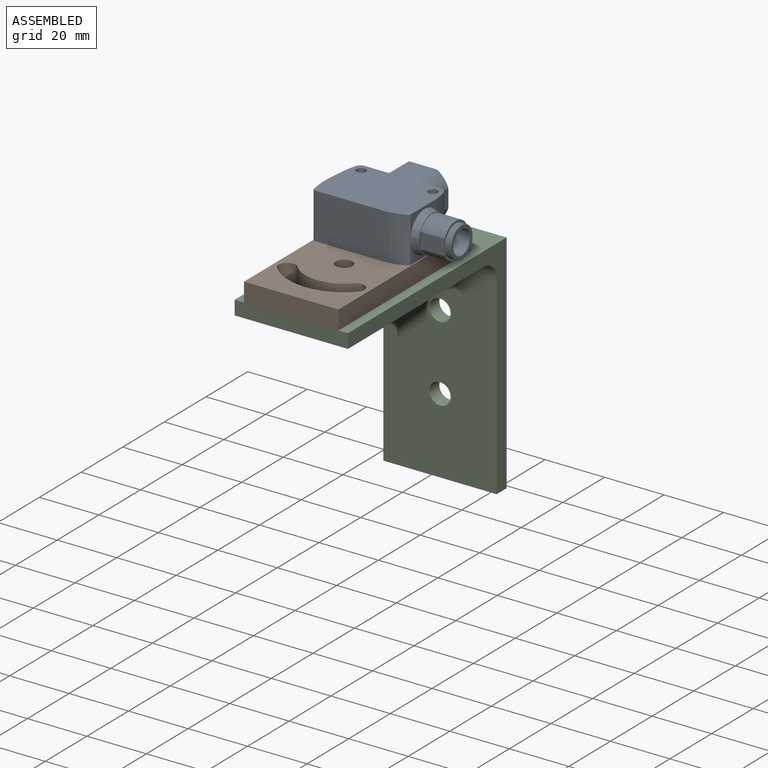
[diagram: assembled view]
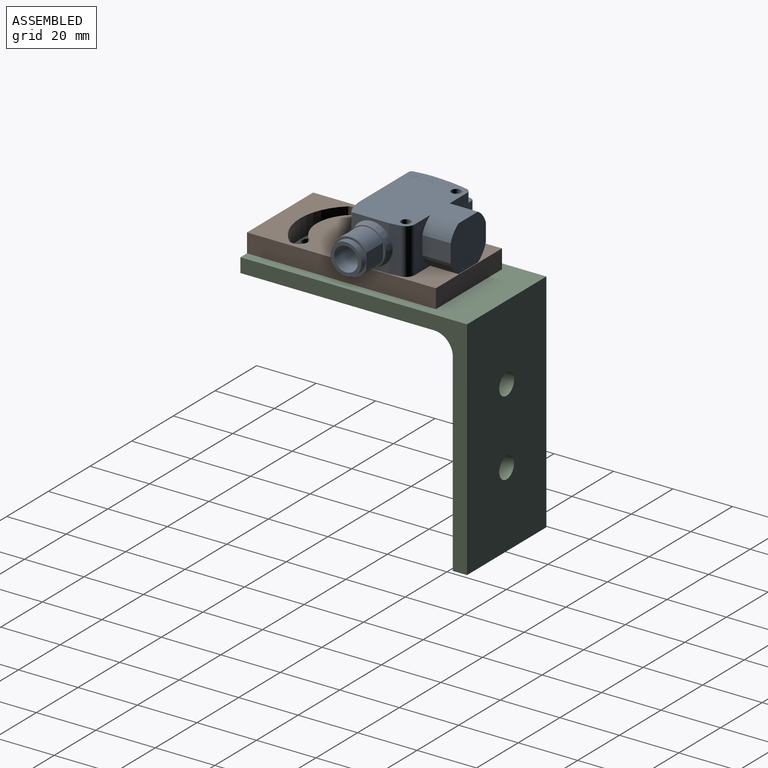
[diagram: assembled view, second angle]
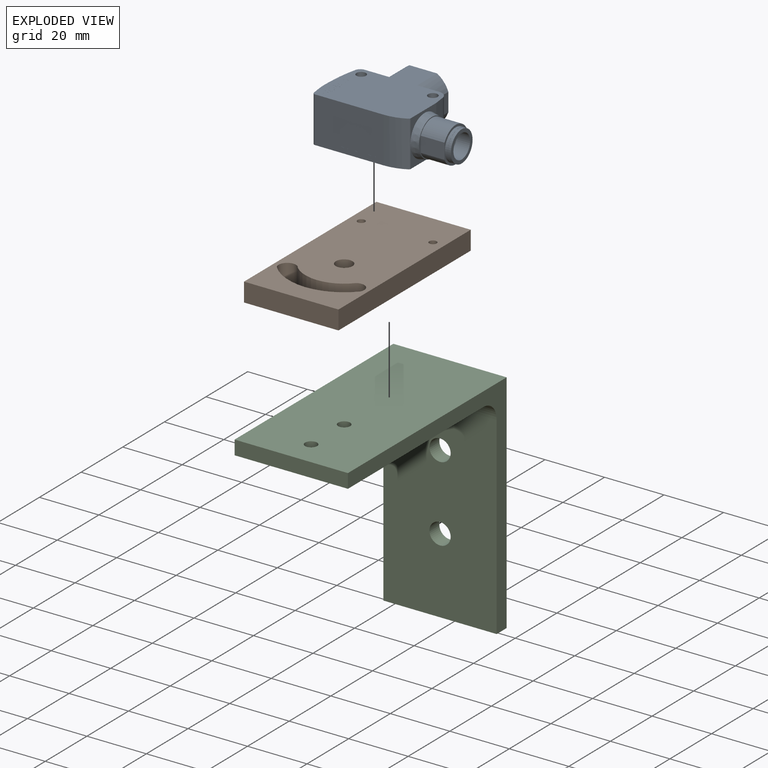
[diagram: exploded view]
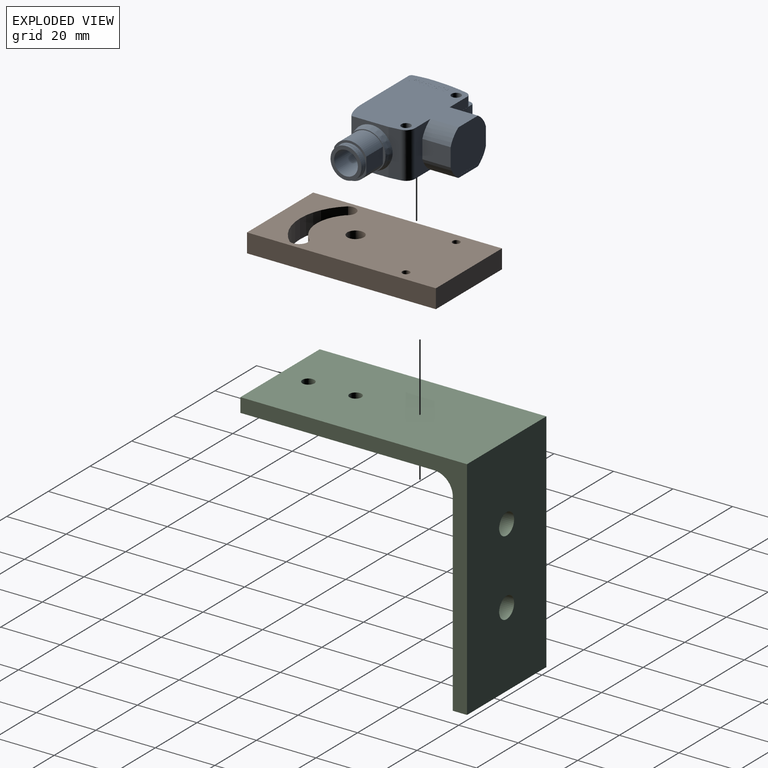
[diagram: exploded view, second angle]
ASSEMBLY  parts=3 mates=2
PART A: 268 faces, bbox 15.6x46.9x30.7 mm
  f0: plane 8.12x8.12mm, normal (0,-1,0), area 50.3mm2, adj f1
  f1: cylinder r=4mm len=10mm, axis (0,-1,0), area 251.3mm2, adj f0,f2
  f2: plane 10.55x10.55mm, normal (0,-1,0), area 34.7mm2, adj f1,f3
  f3: cylinder r=5.2mm len=10.4mm, axis (0,1,0), area 32.7mm2, adj f2,f4
  f4: plane 10.65x10.65mm, normal (0,-1,0), area 1.6mm2, adj f3,f5
  f5: cylinder r=5.25mm len=10.5mm, axis (0,1,0), area 33mm2, adj f4,f17
  f6: plane 0.4x0.4mm, normal (0.71,0,0.71), area 0.1mm2, adj f7,f22,f23,f24
  f7: plane 0.63x0.11mm, normal (0,0,1), area 0.1mm2, adj f6,f8,f22,f24
  f8: plane 0.75x0.13mm, normal (1,0,0), area 0.1mm2, adj f7,f9,f22,f24
  f9: plane 0.63x0.13mm, normal (0,0,-1), area 0.1mm2, adj f8,f10,f22,f24
  f10: plane 0.4x0.4mm, normal (0.71,0,-0.71), area 0.1mm2, adj f9,f21,f22,f24
  f11: plane 0.4x0.4mm, normal (-0.71,0,-0.71), area 0.1mm2, adj f12,f19,f20,f24
  f12: plane 0.63x0.13mm, normal (0,0,-1), area 0.1mm2, adj f11,f13,f19,f24
  f13: plane 0.75x0.13mm, normal (-1,0,0), area 0.1mm2, adj f12,f14,f19,f24
  f14: plane 0.63x0.11mm, normal (0,0,1), area 0.1mm2, adj f13,f15,f19,f24
  f15: plane 0.4x0.4mm, normal (-0.71,0,0.71), area 0.1mm2, adj f14,f18,f19,f24
  f16: plane 29.78x18.96mm, normal (1,0,0), area 513.2mm2, adj f26,f27,f28,f29,f30,f31,f32,f33
  f17: plane 12.15x10.95mm, normal (0,-1,0), area 22.3mm2, adj f5,f43,f44,f45,f46
  f18: plane 1.24x0.1mm, normal (-1,0,0), area 0.1mm2, adj f15,f19,f24,f49
  f19: plane 4.07x1.71mm, normal (0,1,0), area 4.1mm2, adj f11,f12,f13,f14,f15,f18,f20,f49
  f20: plane 1.24x0.23mm, normal (-1,0,0), area 0.2mm2, adj f11,f19,f24,f49
  f21: plane 1.24x0.23mm, normal (1,0,0), area 0.2mm2, adj f10,f22,f24,f49
  f22: plane 4.07x1.71mm, normal (0,1,0), area 4.1mm2, adj f6,f7,f8,f9,f10,f21,f23,f49
  f23: plane 1.24x0.1mm, normal (1,0,0), area 0.1mm2, adj f6,f22,f24,f49
  f24: cylinder r=51.85mm len=4.1mm, axis (-1,0,0), area 4.9mm2, adj f6,f7,f8,f9,f10,f11,f12,f13
  f25: cylinder r=50.33mm len=5.36mm, axis (-1,0,0), area 3mm2, adj f48,f50,f51,f53,f73,f77,f79,f140
  f26: plane 22.43x0.01mm, normal (0,0,-1), area 0.2mm2, adj f16,f27,f42,f56
  f27: cylinder r=13.7mm len=6.35mm, axis (1,0,0), area 0.1mm2, adj f16,f26,f28,f56
  f28: cylinder r=0.35mm len=0.31mm, axis (1,0,0), area 0mm2, adj f16,f27,f29,f56
  f29: plane 12.18x0.01mm, normal (0,-1,0), area 0.1mm2, adj f16,f28,f30,f56
  f30: cylinder r=0.35mm len=0.35mm, axis (1,0,0), area 0mm2, adj f16,f29,f31,f56
  f31: plane 2.15x0.01mm, normal (0,0,1), area 0mm2, adj f16,f30,f32,f56
  f32: cylinder r=2.3mm len=2.3mm, axis (1,0,0), area 0mm2, adj f16,f31,f33,f56
  f33: plane 1.9x0.01mm, normal (0,-1,0), area 0mm2, adj f16,f32,f34,f56
  f34: cylinder r=0.35mm len=0.35mm, axis (1,0,0), area 0mm2, adj f16,f33,f35,f56
  f35: plane 18.8x0.01mm, normal (0,0,1), area 0.2mm2, adj f16,f34,f36,f56
  f36: cylinder r=0.35mm len=0.35mm, axis (1,0,0), area 0mm2, adj f16,f35,f37,f56
  f37: plane 1.9x0.01mm, normal (0,1,0), area 0mm2, adj f16,f36,f38,f56
  f38: cylinder r=2.3mm len=2.3mm, axis (1,0,0), area 0mm2, adj f16,f37,f39,f56
  f39: plane 2.27x0.01mm, normal (0,0,1), area 0mm2, adj f16,f38,f40,f56
  f40: cylinder r=0.35mm len=0.35mm, axis (1,0,0), area 0mm2, adj f16,f39,f41,f56
  f41: cylinder r=49.2mm len=13.8mm, axis (1,0,0), area 0.1mm2, adj f16,f40,f42,f56
  f42: cylinder r=0.35mm len=0.35mm, axis (1,0,0), area 0mm2, adj f16,f26,f41,f56
  f43: cylinder r=6mm len=10.8mm, axis (0,1,0), area 107.5mm2, adj f17,f44,f46,f58
  f44: plane 8x5.23mm, normal (0,0,-1), area 41.8mm2, adj f17,f43,f45,f58
  f45: cylinder r=6mm len=10.8mm, axis (0,1,0), area 107.5mm2, adj f17,f44,f46,f58
  f46: plane 8x5.23mm, normal (0,0,1), area 41.8mm2, adj f17,f43,f45,f58
  f47: plane 1.43x1.42mm, normal (0,1,0), area 0.7mm2, adj f61,f62,f63,f64,f65,f66,f67,f68
  f48: cylinder r=51.85mm len=0.78mm, axis (-1,0,0), area 0.1mm2, adj f25,f50,f77
  f49: cylinder r=2.05mm len=4.1mm, axis (0,1,0), area 4.3mm2, adj f18,f19,f20,f21,f22,f23,f24,f78
  f50: cylinder r=2.3mm len=2.37mm, axis (0,1,0), area 0.3mm2, adj f25,f48,f51,f77,f78,f79
  f51: cylinder r=51.85mm len=0.78mm, axis (-1,0,0), area 0.1mm2, adj f25,f50,f79
  f52: cylinder r=10.73mm len=8.8mm, axis (-1,0,0), area 22.9mm2, adj f55,f81,f85,f86,f150,f151
  f53: plane 3.86x0.2mm, normal (0,0,-1), area 0.8mm2, adj f25,f73,f84,f146
  f54: plane 1.53x0.58mm, normal (0,1,0), area 0.5mm2, adj f55,f73,f74,f75,f84
  f55: revolved ~11x4.01mm, area 19.4mm2, adj f52,f54,f75,f81,f82,f83,f84,f86
  f56: plane 29.98x19.16mm, normal (1,0,0), area 9.3mm2, adj f26,f27,f28,f29,f30,f31,f32,f33
  f57: plane 16.1x13.8mm, normal (0,0,1), area 190.7mm2, adj f117,f118,f119,f120
  f58: plane 12.78x12.78mm, normal (0,-1,0), area 15.8mm2, adj f43,f44,f45,f46,f124
  f59: plane 14.91x9.36mm, normal (0,0,-1), area 139mm2, adj f126,f127,f128,f129,f130,f131,f132,f133
  f60: plane 5.12x1.8mm, normal (0,1,0), area 3.2mm2, adj f134,f135,f136,f137,f138,f139
  f61: plane 0.58x0.26mm, normal (-1,0,0), area 0.1mm2, adj f47,f62,f72,f140
  f62: plane 0.27x0.25mm, normal (0,0,-1), area 0.1mm2, adj f47,f61,f63,f140
  f63: plane 0.58x0.26mm, normal (1,0,0), area 0.1mm2, adj f47,f62,f64,f140
  f64: plane 0.58x0.26mm, normal (0,0,-1), area 0.1mm2, adj f47,f63,f65,f140
  f65: plane 0.27x0.26mm, normal (1,0,0), area 0.1mm2, adj f47,f64,f66,f140
  f66: plane 0.58x0.26mm, normal (0,0,1), area 0.1mm2, adj f47,f65,f67,f140
  f67: plane 0.58x0.26mm, normal (1,0,0), area 0.2mm2, adj f47,f66,f68,f140
  f68: plane 0.27x0.26mm, normal (0,0,1), area 0.1mm2, adj f47,f67,f69,f140
  f69: plane 0.58x0.26mm, normal (-1,0,0), area 0.2mm2, adj f47,f68,f70,f140
  f70: plane 0.58x0.26mm, normal (0,0,1), area 0.1mm2, adj f47,f69,f71,f140
  f71: plane 0.27x0.26mm, normal (-1,0,0), area 0.1mm2, adj f47,f70,f72,f140
  f72: plane 0.58x0.26mm, normal (0,0,-1), area 0.1mm2, adj f47,f61,f71,f140
  f73: extruded ~1.13x1.06mm, area 0.1mm2, adj f25,f53,f54,f74,f84,f140
  f74: cylinder r=0.2mm len=0.27mm, axis (0,-1,0), area 0mm2, adj f54,f73,f75,f140
  f75: plane 0.94x0.51mm, normal (0.47,0,-0.88), area 0mm2, adj f54,f55,f74,f140
  f76: plane 1.05x0.32mm, normal (0,1,0), area 0.3mm2, adj f142,f143,f144,f145
  f77: plane 0.41x0.3mm, normal (0.81,0,-0.59), area 0.1mm2, adj f25,f48,f50,f78,f147
  f78: plane 5.68x5.23mm, normal (0,1,0), area 10mm2, adj f49,f50,f77,f79,f147
  f79: plane 0.41x0.3mm, normal (-0.81,0,-0.59), area 0.1mm2, adj f25,f50,f51,f78,f147
  f80: plane 1.5x0.47mm, normal (0,1,0), area 0.3mm2, adj f84,f146,f148
  f81: cylinder r=2.5mm len=8.28mm, axis (-1,0,0), area 20.9mm2, adj f52,f55,f82,f151
  f82: cylinder r=52.7mm len=7.65mm, axis (-1,0,0), area 38.9mm2, adj f55,f81,f83,f151
  f83: plane 8.4x1.72mm, normal (0,0.79,-0.62), area 17.5mm2, adj f55,f82,f84,f151
  f84: cylinder r=3.02mm len=8.76mm, axis (-1,0,0), area 12.8mm2, adj f53,f54,f55,f73,f80,f83,f146,f148
  f85: cylinder r=2.13mm len=8.8mm, axis (-1,0,0), area 3.6mm2, adj f52,f86,f150,f152
  f86: plane 10.62x7.24mm, normal (1,0,0), area 16mm2, adj f52,f55,f85,f87,f88,f89,f152,f153
  f87: plane 4.78x0.01mm, normal (0,0,1), area 0mm2, adj f86,f88,f153,f154
  f88: cylinder r=50.33mm len=9.59mm, axis (-1,0,0), area 0.1mm2, adj f86,f87,f89,f154
  f89: plane 1.13x0.01mm, normal (0,0,1), area 0mm2, adj f86,f88,f140,f154
  f90: cylinder r=50.33mm len=9.38mm, axis (1,0,0), area 0.1mm2, adj f91,f149,f150,f157
  f91: plane 4.78x0.01mm, normal (0,0,1), area 0mm2, adj f90,f150,f157,f158
  f92: cylinder r=0.45mm len=0.45mm, axis (1,0,0), area 0mm2, adj f56,f93,f108,f160
  f93: plane 22.43x0.01mm, normal (0,0,1), area 0.2mm2, adj f56,f92,f94,f160
  f94: cylinder r=13.8mm len=6.39mm, axis (1,0,0), area 0.1mm2, adj f56,f93,f95,f160
  f95: cylinder r=0.45mm len=0.4mm, axis (1,0,0), area 0mm2, adj f56,f94,f96,f160
  f96: plane 12.18x0.01mm, normal (0,1,0), area 0.1mm2, adj f56,f95,f97,f160
  f97: cylinder r=0.45mm len=0.45mm, axis (1,0,0), area 0mm2, adj f56,f96,f98,f160
  f98: plane 2.15x0.01mm, normal (0,0,-1), area 0mm2, adj f56,f97,f99,f160
  f99: cylinder r=2.2mm len=2.2mm, axis (1,0,0), area 0mm2, adj f56,f98,f100,f160
  f100: plane 1.9x0.01mm, normal (0,1,0), area 0mm2, adj f56,f99,f101,f160
  f101: cylinder r=0.45mm len=0.45mm, axis (1,0,0), area 0mm2, adj f56,f100,f102,f160
  f102: plane 18.8x0.01mm, normal (0,0,-1), area 0.2mm2, adj f56,f101,f103,f160
  f103: cylinder r=0.45mm len=0.45mm, axis (1,0,0), area 0mm2, adj f56,f102,f104,f160
  f104: plane 1.9x0.01mm, normal (0,-1,0), area 0mm2, adj f56,f103,f105,f160
  f105: cylinder r=2.2mm len=2.2mm, axis (1,0,0), area 0mm2, adj f56,f104,f106,f160
  f106: plane 2.27x0.01mm, normal (0,0,-1), area 0mm2, adj f56,f105,f107,f160
  f107: cylinder r=0.45mm len=0.45mm, axis (1,0,0), area 0mm2, adj f56,f106,f108,f160
  f108: cylinder r=49.3mm len=13.83mm, axis (1,0,0), area 0.1mm2, adj f56,f92,f107,f160
  f109: cylinder r=50.33mm len=9.06mm, axis (-1,0,0), area 30.2mm2, adj f140,f154,f155,f160
  f110: plane 1.97x1.58mm, normal (-1,0,0), area 2mm2, adj f162,f163,f164,f165,f166,f167,f168,f169
  f111: plane 1.97x1.66mm, normal (-1,0,0), area 1mm2, adj f172,f173,f174,f175,f176,f177,f178,f179
  f112: plane 1.97x1.17mm, normal (-1,0,0), area 0.9mm2, adj f181,f182,f183,f184,f185,f186
  f113: plane 1.99x1.45mm, normal (-1,0,0), area 1.8mm2, adj f187,f188,f189,f190,f191,f192,f193,f194
  f114: plane 1.97x1.43mm, normal (-1,0,0), area 1.8mm2, adj f203,f204,f205,f206,f207,f208,f209,f210
  f115: plane 1.97x1.43mm, normal (-1,0,0), area 1.8mm2, adj f219,f220,f221,f222,f223,f224,f225,f226
  f116: plane 1.97x1.41mm, normal (-1,0,0), area 1.4mm2, adj f235,f236,f237,f238,f239,f240,f241,f242
  f117: cylinder r=8.05mm len=13.8mm, axis (0,0,1), area 0.2mm2, adj f57,f118,f120,f247
  f118: plane 8.29x0.01mm, normal (-1,0,0), area 0.1mm2, adj f57,f117,f119,f247
  f119: cylinder r=8.05mm len=13.8mm, axis (0,0,1), area 0.2mm2, adj f57,f118,f120,f247
  f120: plane 8.29x0.01mm, normal (1,0,0), area 0.1mm2, adj f57,f117,f119,f247
  f121: plane 9.5x6.2mm, normal (0,-1,0), area 58.9mm2, adj f122,f247,f248,f249
  f122: cylinder r=9mm len=9.5mm, axis (0,0,1), area 57.7mm2, adj f121,f160,f247,f249
  f123: plane 12.5x7.8mm, normal (0,-1,0), area 26mm2, adj f124,f125,f160,f251
  f124: cone r=6.83mm half-angle=11.3deg, axis (0,1,0), area 105.6mm2, adj f58,f123,f251,f252
  f125: cylinder r=1.25mm len=15.4mm, axis (-1,0,0), area 11.4mm2, adj f123,f160,f252,f253,f267
  f126: extruded ~0.66x0.54mm, area 0mm2, adj f59,f127,f133,f254
  f127: plane 8.28x0.01mm, normal (0,-1,0), area 0.1mm2, adj f59,f126,f128,f254
  f128: extruded ~1.09x0.53mm, area 0mm2, adj f59,f127,f129,f254
  f129: plane 12.72x0.01mm, normal (-1,0,0), area 0.1mm2, adj f59,f128,f130,f254
  f130: extruded ~1.09x0.53mm, area 0mm2, adj f59,f129,f131,f254
  f131: plane 8.28x0.01mm, normal (0,1,0), area 0.1mm2, adj f59,f130,f132,f254
  f132: extruded ~0.66x0.54mm, area 0mm2, adj f59,f131,f133,f254
  f133: plane 13.59x0.01mm, normal (1,0,0), area 0.1mm2, adj f59,f126,f132,f254
  f134: extruded ~2.73x1.75mm, area 0.3mm2, adj f60,f135,f139,f255
  f135: extruded ~2.38x1.17mm, area 0.2mm2, adj f60,f134,f136,f255
  f136: plane 0.66x0.62mm, normal (-0.69,0,-0.73), area 0.2mm2, adj f60,f135,f137,f255
  f137: extruded ~2.11x1.15mm, area 0.3mm2, adj f60,f136,f138,f255
  f138: extruded ~2.29x1.12mm, area 0.3mm2, adj f60,f137,f139,f255
  f139: extruded ~0.19x0.05mm, area 0mm2, adj f60,f134,f138,f255
  f140: cylinder r=51.85mm len=7.25mm, axis (-1,0,0), area 24.8mm2, adj f25,f61,f62,f63,f64,f65,f66,f67
  f141: cylinder r=1mm len=15.4mm, axis (-1,0,0), area 21.9mm2, adj f160,f254,f255,f267
  f142: plane 0.32x0.26mm, normal (1,0,0), area 0.1mm2, adj f76,f143,f145,f256
  f143: plane 1.05x0.26mm, normal (0,0,1), area 0.3mm2, adj f76,f142,f144,f256
  f144: plane 0.32x0.26mm, normal (-1,0,0), area 0.1mm2, adj f76,f143,f145,f256
  f145: plane 1.05x0.26mm, normal (0,0,-1), area 0.3mm2, adj f76,f142,f144,f256
  f146: extruded ~1.12x1.06mm, area 0.2mm2, adj f25,f53,f80,f84,f148,f256
  f147: cylinder r=2.8mm len=5.6mm, axis (0,1,0), area 3.2mm2, adj f25,f77,f78,f79,f140,f255,f256
  f148: plane 1.61x0.64mm, normal (-0.37,0,-0.93), area 0.1mm2, adj f80,f84,f146,f151,f256,f257
  f149: plane 1.13x0.01mm, normal (0,0,1), area 0mm2, adj f90,f150,f157,f257
  f150: plane 10.41x7.23mm, normal (-1,0,0), area 15.8mm2, adj f52,f85,f90,f91,f149,f151,f152,f158
  f151: revolved ~10.78x4mm, area 19.4mm2, adj f52,f81,f82,f83,f84,f148,f150
  f152: plane 8.8x3.68mm, normal (0,0,1), area 26.3mm2, adj f85,f86,f150,f259
  f153: plane 1.01x0.01mm, normal (0,1,0), area 0mm2, adj f86,f87,f154,f259
  f154: plane 10.65x7.27mm, normal (-1,0,0), area 15.5mm2, adj f87,f88,f89,f109,f140,f153,f155,f259
  f155: cylinder r=2.13mm len=3.29mm, axis (-1,0,0), area 9.9mm2, adj f109,f154,f160,f259
  f156: cylinder r=9mm len=9.5mm, axis (0,0,1), area 57.7mm2, adj f159,f160,f247,f259
  f157: plane 10.43x7.26mm, normal (1,0,0), area 15.3mm2, adj f90,f91,f149,f158,f257,f258,f259
  f158: plane 1.01x0.01mm, normal (0,1,0), area 0mm2, adj f91,f150,f157,f259
  f159: plane 9.5x6.2mm, normal (0,1,0), area 58.9mm2, adj f156,f247,f259,f260
  f160: plane 32.1x30.57mm, normal (1,0,0), area 202.2mm2, adj f92,f93,f94,f95,f96,f97,f98,f99
  f161: plane 2.05x1.42mm, normal (-1,0,0), area 1.4mm2, adj f263,f264,f265,f266
  f162: plane 1.18x0.01mm, normal (0,0,-1), area 0mm2, adj f110,f163,f171,f267
  f163: cylinder r=981.37mm len=1.18mm, axis (-1,0,0), area 0mm2, adj f110,f162,f164,f267
  f164: plane 0.36x0.01mm, normal (0,1,0), area 0mm2, adj f110,f163,f165,f267
  f165: plane 1.97x0.01mm, normal (0,0,-1), area 0mm2, adj f110,f164,f166,f267
  f166: plane 0.37x0.01mm, normal (0,-1,0), area 0mm2, adj f110,f165,f167,f267
  f167: plane 1.33x0.01mm, normal (0,0,1), area 0mm2, adj f110,f166,f168,f267
  f168: cylinder r=1044.69mm len=1.33mm, axis (1,0,0), area 0mm2, adj f110,f167,f169,f267
  f169: plane 0.34x0.01mm, normal (0,-1,0), area 0mm2, adj f110,f168,f170,f267
  f170: plane 1.97x0.01mm, normal (0,0,1), area 0mm2, adj f110,f169,f171,f267
  f171: plane 0.37x0.01mm, normal (0,1,0), area 0mm2, adj f110,f162,f170,f267
  f172: plane 0.96x0.01mm, normal (0,0,-1), area 0mm2, adj f111,f173,f180,f267
  f173: plane 0.37x0.01mm, normal (0,-1,0), area 0mm2, adj f111,f172,f174,f267
  f174: plane 0.96x0.01mm, normal (0,0,1), area 0mm2, adj f111,f173,f175,f267
  f175: cylinder r=984.53mm len=1.01mm, axis (1,0,0), area 0mm2, adj f111,f174,f176,f267
  f176: plane 0.32x0.01mm, normal (0,1,0), area 0mm2, adj f111,f175,f177,f267
  f177: cylinder r=973.84mm len=0.78mm, axis (-1,0,0), area 0mm2, adj f111,f176,f178,f267
  f178: cylinder r=974.13mm len=0.78mm, axis (-1,0,0), area 0mm2, adj f111,f177,f179,f267
  f179: plane 0.32x0.01mm, normal (0,1,0), area 0mm2, adj f111,f178,f180,f267
  f180: cylinder r=984.58mm len=1.01mm, axis (1,0,0), area 0mm2, adj f111,f172,f179,f267
  f181: plane 0.44x0.01mm, normal (0,1,0), area 0mm2, adj f112,f182,f186,f267
  f182: cylinder r=974.5mm len=0.98mm, axis (-1,0,0), area 0mm2, adj f112,f181,f183,f267
  f183: cylinder r=1067.85mm len=0.99mm, axis (1,0,0), area 0mm2, adj f112,f182,f184,f267
  f184: plane 0.46x0.01mm, normal (0,-1,0), area 0mm2, adj f112,f183,f185,f267
  f185: cylinder r=1074.7mm len=1.01mm, axis (-1,0,0), area 0mm2, adj f112,f184,f186,f267
  f186: cylinder r=972.45mm len=0.95mm, axis (1,0,0), area 0mm2, adj f112,f181,f185,f267
  f187: extruded ~0.51x0.28mm, area 0mm2, adj f113,f188,f202,f267
  f188: plane 0.97x0.01mm, normal (0,0,-1), area 0mm2, adj f113,f187,f189,f267
  f189: extruded ~0.51x0.28mm, area 0mm2, adj f113,f188,f190,f267
  f190: plane 1.15x0.01mm, normal (0,-1,0), area 0mm2, adj f113,f189,f191,f267
  f191: plane 0.4x0.01mm, normal (0,0,1), area 0mm2, adj f113,f190,f192,f267
  f192: plane 0.94x0.01mm, normal (0,1,0), area 0mm2, adj f113,f191,f193,f267
  f193: extruded ~0.16x0.08mm, area 0mm2, adj f113,f192,f194,f267
  f194: plane 0.26x0.01mm, normal (0,0,1), area 0mm2, adj f113,f193,f195,f267
  f195: plane 0.95x0.01mm, normal (0,-1,0), area 0mm2, adj f113,f194,f196,f267
  f196: plane 0.34x0.01mm, normal (0,0,1), area 0mm2, adj f113,f195,f197,f267
  f197: plane 0.95x0.01mm, normal (0,1,0), area 0mm2, adj f113,f196,f198,f267
  f198: plane 0.26x0.01mm, normal (0,0,1), area 0mm2, adj f113,f197,f199,f267
  f199: extruded ~0.15x0.08mm, area 0mm2, adj f113,f198,f200,f267
  f200: plane 0.66x0.01mm, normal (0,-1,0), area 0mm2, adj f113,f199,f201,f267
  f201: cylinder r=951.16mm len=0.4mm, axis (1,0,0), area 0mm2, adj f113,f200,f202,f267
  f202: plane 1.17x0.01mm, normal (0,1,0), area 0mm2, adj f113,f187,f201,f267
  f203: extruded ~0.17x0.09mm, area 0mm2, adj f114,f204,f218,f267
  f204: plane 0.27x0.01mm, normal (0,0,1), area 0mm2, adj f114,f203,f205,f267
  f205: plane 0.95x0.01mm, normal (0,-1,0), area 0mm2, adj f114,f204,f206,f267
  f206: plane 0.33x0.01mm, normal (0,0,1), area 0mm2, adj f114,f205,f207,f267
  f207: plane 0.95x0.01mm, normal (0,1,0), area 0mm2, adj f114,f206,f208,f267
  f208: plane 0.27x0.01mm, normal (0,0,1), area 0mm2, adj f114,f207,f209,f267
  f209: extruded ~0.16x0.09mm, area 0mm2, adj f114,f208,f210,f267
  f210: plane 0.66x0.01mm, normal (0,-1,0), area 0mm2, adj f114,f209,f211,f267
  f211: cylinder r=951.75mm len=0.39mm, axis (1,0,0), area 0mm2, adj f114,f210,f212,f267
  f212: plane 1.16x0.01mm, normal (0,1,0), area 0mm2, adj f114,f211,f213,f267
  f213: extruded ~0.5x0.27mm, area 0mm2, adj f114,f212,f214,f267
  f214: plane 0.97x0.01mm, normal (0,0,-1), area 0mm2, adj f114,f213,f215,f267
  f215: extruded ~0.5x0.27mm, area 0mm2, adj f114,f214,f216,f267
  f216: plane 1.15x0.01mm, normal (0,-1,0), area 0mm2, adj f114,f215,f217,f267
  f217: plane 0.39x0.01mm, normal (0,0,1), area 0mm2, adj f114,f216,f218,f267
  f218: plane 0.93x0.01mm, normal (0,1,0), area 0mm2, adj f114,f203,f217,f267
  f219: extruded ~0.5x0.27mm, area 0mm2, adj f115,f220,f234,f267
  f220: plane 0.97x0.01mm, normal (0,0,-1), area 0mm2, adj f115,f219,f221,f267
  f221: extruded ~0.5x0.27mm, area 0mm2, adj f115,f220,f222,f267
  f222: plane 1.15x0.01mm, normal (0,-1,0), area 0mm2, adj f115,f221,f223,f267
  f223: plane 0.39x0.01mm, normal (0,0,1), area 0mm2, adj f115,f222,f224,f267
  f224: plane 0.93x0.01mm, normal (0,1,0), area 0mm2, adj f115,f223,f225,f267
  f225: extruded ~0.17x0.09mm, area 0mm2, adj f115,f224,f226,f267
  f226: plane 0.27x0.01mm, normal (0,0,1), area 0mm2, adj f115,f225,f227,f267
  f227: plane 0.95x0.01mm, normal (0,-1,0), area 0mm2, adj f115,f226,f228,f267
  f228: plane 0.33x0.01mm, normal (0,0,1), area 0mm2, adj f115,f227,f229,f267
  f229: plane 0.95x0.01mm, normal (0,1,0), area 0mm2, adj f115,f228,f230,f267
  f230: plane 0.27x0.01mm, normal (0,0,1), area 0mm2, adj f115,f229,f231,f267
  f231: extruded ~0.16x0.09mm, area 0mm2, adj f115,f230,f232,f267
  f232: plane 0.66x0.01mm, normal (0,-1,0), area 0mm2, adj f115,f231,f233,f267
  f233: cylinder r=952.12mm len=0.39mm, axis (1,0,0), area 0mm2, adj f115,f232,f234,f267
  f234: plane 1.16x0.01mm, normal (0,1,0), area 0mm2, adj f115,f219,f233,f267
  f235: plane 0.87x0.01mm, normal (0,0,1), area 0mm2, adj f116,f236,f246,f267
  f236: extruded ~0.16x0.09mm, area 0mm2, adj f116,f235,f237,f267
  f237: plane 0.65x0.01mm, normal (0,-1,0), area 0mm2, adj f116,f236,f238,f267
  f238: cylinder r=948.99mm len=0.39mm, axis (1,0,0), area 0mm2, adj f116,f237,f239,f267
  f239: plane 1.13x0.01mm, normal (0,1,0), area 0mm2, adj f116,f238,f240,f267
  f240: extruded ~0.5x0.27mm, area 0mm2, adj f116,f239,f241,f267
  f241: plane 0.96x0.01mm, normal (0,0,-1), area 0mm2, adj f116,f240,f242,f267
  f242: extruded ~0.5x0.27mm, area 0mm2, adj f116,f241,f243,f267
  f243: plane 1.12x0.01mm, normal (0,-1,0), area 0mm2, adj f116,f242,f244,f267
  f244: plane 0.39x0.01mm, normal (0,0,1), area 0mm2, adj f116,f243,f245,f267
  f245: plane 0.93x0.01mm, normal (0,1,0), area 0mm2, adj f116,f244,f246,f267
  f246: extruded ~0.16x0.09mm, area 0mm2, adj f116,f235,f245,f267
  f247: plane 16.92x15.42mm, normal (0,0,1), area 42.8mm2, adj f117,f118,f119,f120,f121,f122,f156,f159
  f248: cylinder r=9mm len=9.5mm, axis (0,0,1), area 57.7mm2, adj f121,f247,f249,f267
  f249: plane 15.42x7.41mm, normal (0,0,1), area 68.8mm2, adj f121,f122,f160,f248,f250,f267
  f250: cylinder r=3mm len=15.4mm, axis (-1,0,0), area 66.8mm2, adj f160,f249,f251,f267
  f251: plane 15.48x3.85mm, normal (0,-0.99,0.12), area 52.1mm2, adj f123,f124,f160,f250,f252,f267
  f252: plane 12.5x7.8mm, normal (0,-1,0), area 26mm2, adj f124,f125,f251,f267
  f253: cylinder r=15mm len=15.4mm, axis (-1,0,0), area 111.2mm2, adj f125,f160,f254,f267
  f254: plane 23x15.41mm, normal (0,0,-1), area 215.1mm2, adj f126,f127,f128,f129,f130,f131,f132,f133
  f255: cylinder r=50.5mm len=15.4mm, axis (-1,0,0), area 67.5mm2, adj f134,f135,f136,f137,f138,f139,f140,f141
  f256: cylinder r=51.85mm len=7.65mm, axis (-1,0,0), area 27.3mm2, adj f25,f142,f143,f144,f145,f146,f147,f148
  f257: cylinder r=50.33mm len=9.06mm, axis (-1,0,0), area 30.2mm2, adj f148,f149,f157,f256,f258,f267
  f258: cylinder r=2.13mm len=3.29mm, axis (-1,0,0), area 9.9mm2, adj f157,f257,f259,f267
  f259: plane 15.4x8.1mm, normal (0,0,1), area 53.7mm2, adj f152,f153,f154,f155,f156,f157,f158,f159
  f260: cylinder r=9mm len=9.5mm, axis (0,0,1), area 57.7mm2, adj f159,f247,f259,f267
  f261: cylinder r=1.6mm len=15.4mm, axis (-1,0,0), area 154.8mm2, adj f160,f267
  f262: cylinder r=1.6mm len=15.4mm, axis (-1,0,0), area 154.8mm2, adj f160,f267
  f263: plane 1.15x0.01mm, normal (0,1,0), area 0mm2, adj f161,f264,f266,f267
  f264: extruded ~0.5x0.27mm, area 0mm2, adj f161,f263,f265,f267
  f265: plane 1.55x0.01mm, normal (0,0,-1), area 0mm2, adj f161,f264,f266,f267
  f266: plane 2.05x1.42mm, normal (0,-0.57,0.82), area 0mm2, adj f161,f263,f265,f267
  f267: plane 32.03x30.52mm, normal (-1,0,0), area 712.6mm2, adj f125,f141,f162,f163,f164,f165,f166,f167
PART B: 13 faces, bbox 31.8x63.5x6.4 mm
  f0: cylinder r=13.07mm len=18.91mm, axis (0,0,-1), area 134.5mm2, adj f1,f7,f8,f9
  f1: cylinder r=2.9mm len=6.35mm, axis (0,0,-1), area 48.5mm2, adj f0,f2,f8,f9
  f2: cylinder r=18.68mm len=28.06mm, axis (0,0,-1), area 201.6mm2, adj f1,f7,f8,f9
  f3: plane 31.75x6.35mm, normal (0,1,0), area 201.6mm2, adj f4,f6,f8,f9
  f4: plane 63.5x6.35mm, normal (-1,0,0), area 403.2mm2, adj f3,f5,f8,f9
  f5: plane 31.75x6.35mm, normal (0,-1,0), area 201.6mm2, adj f4,f6,f8,f9
  f6: plane 63.5x6.35mm, normal (1,0,0), area 403.2mm2, adj f3,f5,f8,f9
  f7: cylinder r=2.9mm len=6.35mm, axis (0,0,-1), area 57.9mm2, adj f0,f2,f8,f9
  f8: plane 63.5x31.75mm, normal (0,0,1), area 1810.7mm2, adj f0,f1,f2,f3,f4,f5,f6,f7
  f9: plane 63.5x31.75mm, normal (0,0,-1), area 1810.7mm2, adj f0,f1,f2,f3,f4,f5,f6,f7
  f10: cylinder r=2.81mm len=6.35mm, axis (0,0,-1), area 112mm2, adj f8,f9
  f11: cylinder r=1.25mm len=6.35mm, axis (0,0,-1), area 49.9mm2, adj f8,f9
  f12: cylinder r=1.25mm len=6.35mm, axis (0,0,-1), area 49.9mm2, adj f8,f9
PART C: 13 faces, bbox 38.1x76.2x76.2 mm
  f0: plane 76.2x38.1mm, normal (0,1,0), area 2823.2mm2, adj f1,f6,f7,f8,f9,f10
  f1: plane 76.2x38.1mm, normal (0,0,1), area 2877.6mm2, adj f0,f2,f7,f8,f11,f12
  f2: plane 38.1x4.78mm, normal (0,-1,0), area 181.9mm2, adj f1,f3,f7,f8
  f3: plane 65.08x38.1mm, normal (0,0,-1), area 2453.7mm2, adj f2,f4,f7,f8,f11,f12
  f4: cylinder r=6.35mm len=38.1mm, axis (-1,0,0), area 380mm2, adj f3,f5,f7,f8
  f5: plane 65.08x38.1mm, normal (0,-1,0), area 2399.3mm2, adj f4,f6,f7,f8,f9,f10
  f6: plane 38.1x4.78mm, normal (0,0,-1), area 181.9mm2, adj f0,f5,f7,f8
  f7: plane 76.2x76.2mm, normal (1,0,0), area 713.6mm2, adj f0,f1,f2,f3,f4,f5,f6
  f8: plane 76.2x76.2mm, normal (-1,0,0), area 713.6mm2, adj f0,f1,f2,f3,f4,f5,f6
  f9: cylinder r=3.57mm len=7.14mm, axis (0,1,0), area 107.1mm2, adj f0,f5
  f10: cylinder r=3.57mm len=7.14mm, axis (0,1,0), area 107.1mm2, adj f0,f5
  f11: cylinder r=2.02mm len=4.78mm, axis (0,0,1), area 60.6mm2, adj f1,f3
  f12: cylinder r=2.02mm len=4.78mm, axis (0,0,1), area 60.6mm2, adj f1,f3
PLACE A rot(axis=(-0.58,0.58,0.58),120deg) t=(57.74,47.62,0.91)mm
PLACE B t=(57.69,16.07,-13.14)mm
PLACE C t=(38.64,58.13,-51.24)mm
MATE revolute B.f10 <-> C.f12  axis (0,0,-1) through (57.69,9.72,-13.14)mm
MATE fastened A.f262 <-> B.f11  axis (0,0,-1) through (45.64,35.12,-6.79)mm
